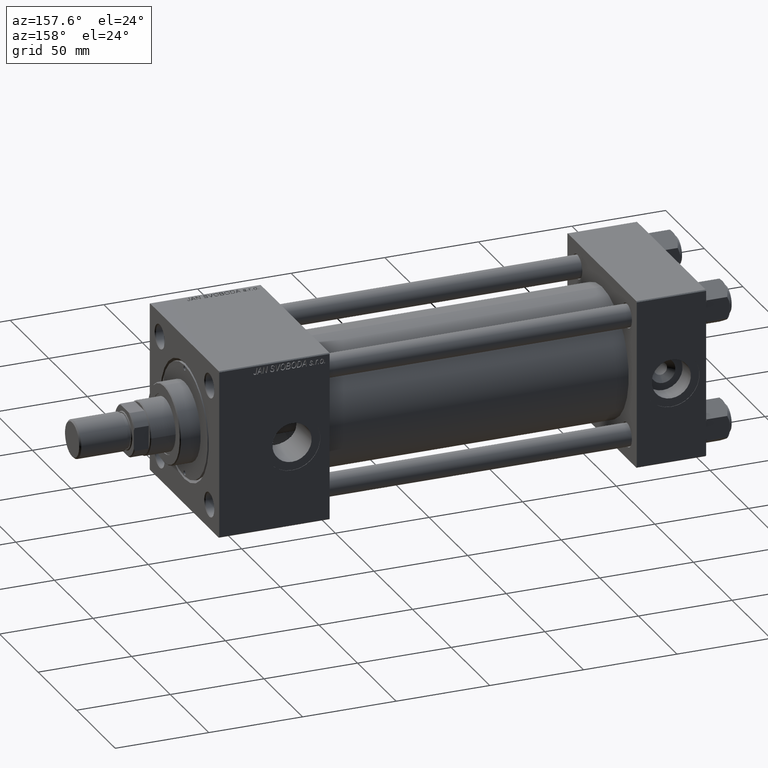
[diagram: clean part render]
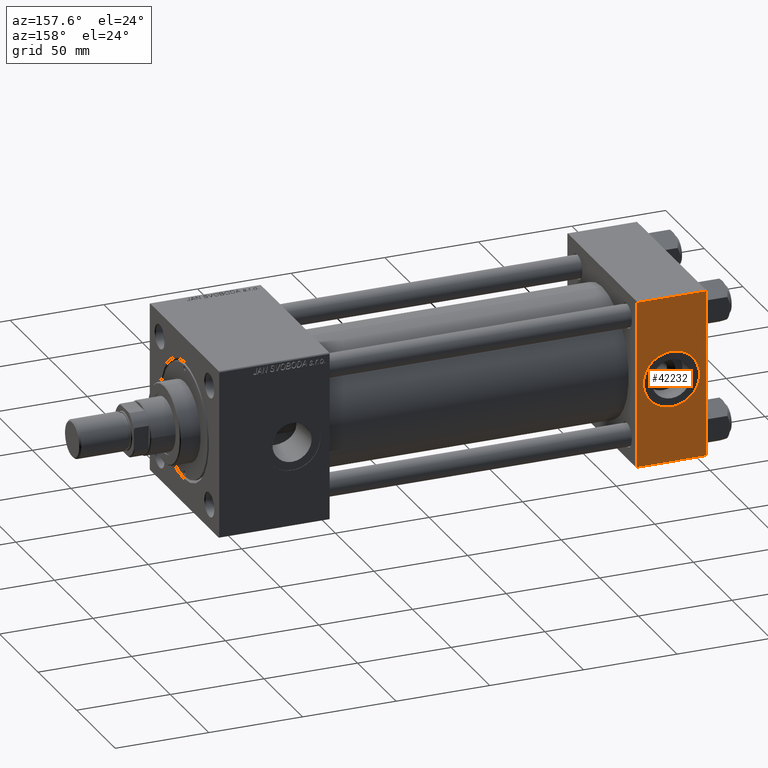
[diagram: same view with one face highlighted and labeled with its STEP entity id]
A machine part, auxiliary view. The second image highlights one B-rep face of the part: STEP entity #42232.
In plain terms, the highlighted planar face has unit normal (0, 1, 0).
Its self-contained STEP definition (entity closure, byte-faithful):
#2007 = EDGE_CURVE ( 'NONE', #23709, #12811, #30532, .T. ) ;
#2612 = DIRECTION ( 'NONE',  ( -1.000000000000000000, 0.000000000000000000, 0.000000000000000000 ) ) ;
#2615 = VERTEX_POINT ( 'NONE', #8968 ) ;
#4131 = EDGE_LOOP ( 'NONE', ( #43760, #44894 ) ) ;
#4404 = EDGE_LOOP ( 'NONE', ( #34385, #50309, #8672, #24196 ) ) ;
#5448 = EDGE_CURVE ( 'NONE', #7168, #10976, #26839, .T. ) ;
#5489 = LINE ( 'NONE', #49905, #26977 ) ;
#5570 = DIRECTION ( 'NONE',  ( 0.000000000000000000, 0.000000000000000000, -1.000000000000000000 ) ) ;
#7168 = VERTEX_POINT ( 'NONE', #48401 ) ;
#8603 = VECTOR ( 'NONE', #5570, 1000.000000000000000 ) ;
#8672 = ORIENTED_EDGE ( 'NONE', *, *, #46860, .F. ) ;
#8968 = CARTESIAN_POINT ( 'NONE',  ( 0.000000000000000000, 44.99999999999998579, -44.49999999999995737 ) ) ;
#9765 = DIRECTION ( 'NONE',  ( 0.000000000000000000, 0.000000000000000000, -1.000000000000000000 ) ) ;
#10976 = VERTEX_POINT ( 'NONE', #29018 ) ;
#12811 = VERTEX_POINT ( 'NONE', #37783 ) ;
#12960 = CIRCLE ( 'NONE', #50564, 15.00000000000000178 ) ;
#14156 = DIRECTION ( 'NONE',  ( -0.000000000000000000, 1.000000000000000000, 0.000000000000000000 ) ) ;
#18721 = AXIS2_PLACEMENT_3D ( 'NONE', #27249, #14156, #51594 ) ;
#19916 = DIRECTION ( 'NONE',  ( 0.000000000000000000, 1.000000000000000000, 0.000000000000000000 ) ) ;
#19924 = DIRECTION ( 'NONE',  ( 0.000000000000000000, 0.000000000000000000, 1.000000000000000000 ) ) ;
#22123 = EDGE_CURVE ( 'NONE', #26585, #2615, #47290, .T. ) ;
#22241 = CARTESIAN_POINT ( 'NONE',  ( 37.00000000000000000, 44.99999999999998579, 44.50000000000001421 ) ) ;
#23655 = CARTESIAN_POINT ( 'NONE',  ( 18.50000000000000000, 44.99999999999998579, 0.000000000000000000 ) ) ;
#23709 = VERTEX_POINT ( 'NONE', #42316 ) ;
#24196 = ORIENTED_EDGE ( 'NONE', *, *, #2007, .T. ) ;
#25639 = CARTESIAN_POINT ( 'NONE',  ( 0.000000000000000000, 44.99999999999998579, 45.00000000000001421 ) ) ;
#25999 = AXIS2_PLACEMENT_3D ( 'NONE', #23655, #19916, #39718 ) ;
#26585 = VERTEX_POINT ( 'NONE', #38145 ) ;
#26839 = CIRCLE ( 'NONE', #25999, 15.00000000000000178 ) ;
#26977 = VECTOR ( 'NONE', #9765, 1000.000000000000000 ) ;
#27249 = CARTESIAN_POINT ( 'NONE',  ( 37.00000000000000000, 44.99999999999998579, 45.00000000000001421 ) ) ;
#29018 = CARTESIAN_POINT ( 'NONE',  ( 18.50000000000000000, 44.99999999999998579, 15.00000000000000178 ) ) ;
#29049 = VECTOR ( 'NONE', #2612, 1000.000000000000000 ) ;
#30532 = LINE ( 'NONE', #22241, #32558 ) ;
#31850 = EDGE_CURVE ( 'NONE', #12811, #26585, #5489, .T. ) ;
#32558 = VECTOR ( 'NONE', #46848, 1000.000000000000000 ) ;
#33291 = DIRECTION ( 'NONE',  ( 0.000000000000000000, 1.000000000000000000, 0.000000000000000000 ) ) ;
#34195 = LINE ( 'NONE', #25639, #8603 ) ;
#34385 = ORIENTED_EDGE ( 'NONE', *, *, #31850, .T. ) ;
#37783 = CARTESIAN_POINT ( 'NONE',  ( 37.00000000000000000, 44.99999999999998579, 44.50000000000001421 ) ) ;
#38145 = CARTESIAN_POINT ( 'NONE',  ( 37.00000000000000000, 44.99999999999998579, -44.49999999999995737 ) ) ;
#39294 = FACE_OUTER_BOUND ( 'NONE', #4404, .T. ) ;
#39718 = DIRECTION ( 'NONE',  ( 0.000000000000000000, 0.000000000000000000, 1.000000000000000000 ) ) ;
#40522 = CARTESIAN_POINT ( 'NONE',  ( 18.50000000000000000, 44.99999999999998579, 0.000000000000000000 ) ) ;
#42232 = ADVANCED_FACE ( 'NONE', ( #50278, #39294 ), #51329, .T. ) ;
#42316 = CARTESIAN_POINT ( 'NONE',  ( 0.000000000000000000, 44.99999999999998579, 44.50000000000001421 ) ) ;
#43760 = ORIENTED_EDGE ( 'NONE', *, *, #48514, .F. ) ;
#44894 = ORIENTED_EDGE ( 'NONE', *, *, #5448, .F. ) ;
#46848 = DIRECTION ( 'NONE',  ( 1.000000000000000000, 0.000000000000000000, 0.000000000000000000 ) ) ;
#46860 = EDGE_CURVE ( 'NONE', #23709, #2615, #34195, .T. ) ;
#47290 = LINE ( 'NONE', #50779, #29049 ) ;
#48401 = CARTESIAN_POINT ( 'NONE',  ( 18.50000000000000355, 44.99999999999998579, -15.00000000000000178 ) ) ;
#48514 = EDGE_CURVE ( 'NONE', #10976, #7168, #12960, .T. ) ;
#49905 = CARTESIAN_POINT ( 'NONE',  ( 37.00000000000000000, 44.99999999999998579, 45.00000000000001421 ) ) ;
#50278 = FACE_BOUND ( 'NONE', #4131, .T. ) ;
#50309 = ORIENTED_EDGE ( 'NONE', *, *, #22123, .T. ) ;
#50564 = AXIS2_PLACEMENT_3D ( 'NONE', #40522, #33291, #19924 ) ;
#50779 = CARTESIAN_POINT ( 'NONE',  ( 37.00000000000000000, 44.99999999999998579, -44.49999999999998579 ) ) ;
#51329 = PLANE ( 'NONE',  #18721 ) ;
#51594 = DIRECTION ( 'NONE',  ( 0.000000000000000000, -0.000000000000000000, 1.000000000000000000 ) ) ;